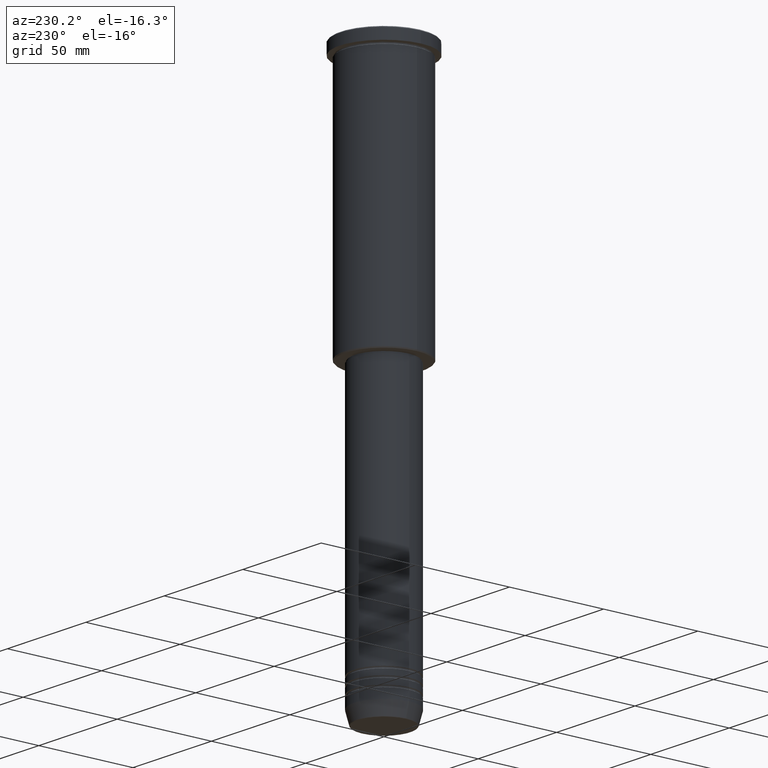
[diagram: clean part render]
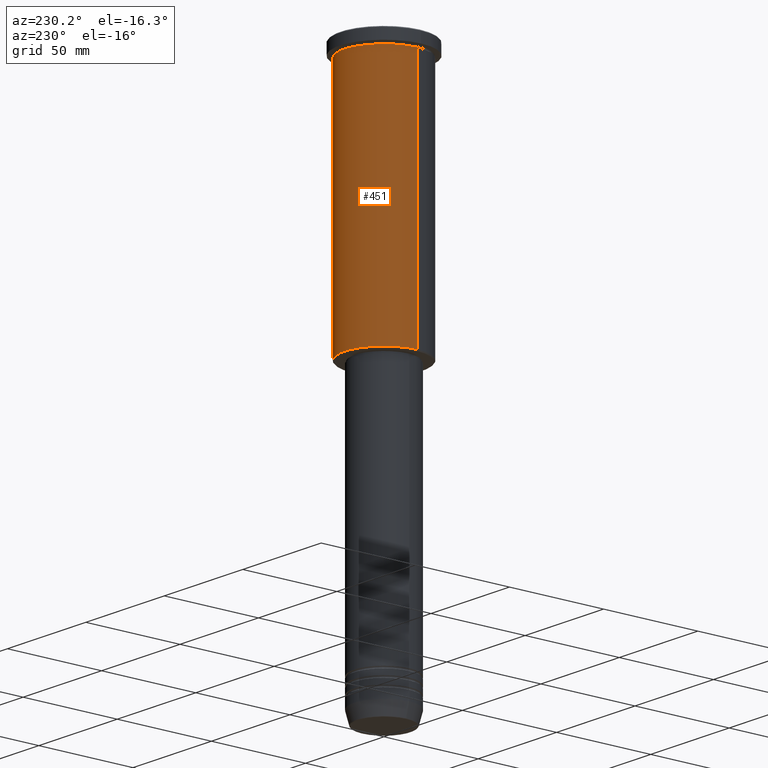
[diagram: same view with one face highlighted and labeled with its STEP entity id]
A machine part, auxiliary view. The second image highlights one B-rep face of the part: STEP entity #451.
In plain terms, the highlighted cylindrical surface (partial cylindrical patch) has radius 21 mm, axis along (-0, -0, 1).
Its self-contained STEP definition (entity closure, byte-faithful):
#73 = CARTESIAN_POINT ( 'NONE',  ( 0.000000000000000000, 0.000000000000000000, 0.000000000000000000 ) ) ;
#114 = VECTOR ( 'NONE', #858, 1000.000000000000000 ) ;
#138 = VECTOR ( 'NONE', #721, 1000.000000000000000 ) ;
#140 = CARTESIAN_POINT ( 'NONE',  ( -21.00000000000000000, 2.571758278209441661E-15, 0.000000000000000000 ) ) ;
#144 = DIRECTION ( 'NONE',  ( -0.000000000000000000, -0.000000000000000000, 1.000000000000000000 ) ) ;
#187 = CARTESIAN_POINT ( 'NONE',  ( 0.000000000000000000, 0.000000000000000000, -135.5000000000000568 ) ) ;
#205 = CIRCLE ( 'NONE', #457, 21.00000000000000000 ) ;
#224 = ORIENTED_EDGE ( 'NONE', *, *, #681, .T. ) ;
#242 = VERTEX_POINT ( 'NONE', #510 ) ;
#260 = DIRECTION ( 'NONE',  ( 1.000000000000000000, 0.000000000000000000, 0.000000000000000000 ) ) ;
#306 = EDGE_LOOP ( 'NONE', ( #1143, #224, #495, #977 ) ) ;
#368 = EDGE_CURVE ( 'NONE', #242, #943, #626, .T. ) ;
#425 = LINE ( 'NONE', #140, #114 ) ;
#440 = CIRCLE ( 'NONE', #479, 21.00000000000000000 ) ;
#449 = CARTESIAN_POINT ( 'NONE',  ( 21.00000000000000000, 0.000000000000000000, 0.000000000000000000 ) ) ;
#451 = ADVANCED_FACE ( 'NONE', ( #1178 ), #979, .T. ) ;
#457 = AXIS2_PLACEMENT_3D ( 'NONE', #591, #144, #1152 ) ;
#467 = CARTESIAN_POINT ( 'NONE',  ( -21.00000000000000000, 2.571758278209441661E-15, -135.5000000000000568 ) ) ;
#479 = AXIS2_PLACEMENT_3D ( 'NONE', #187, #574, #730 ) ;
#495 = ORIENTED_EDGE ( 'NONE', *, *, #754, .F. ) ;
#510 = CARTESIAN_POINT ( 'NONE',  ( 21.00000000000000000, 0.000000000000000000, -135.5000000000000568 ) ) ;
#514 = VERTEX_POINT ( 'NONE', #1105 ) ;
#522 = AXIS2_PLACEMENT_3D ( 'NONE', #73, #886, #260 ) ;
#574 = DIRECTION ( 'NONE',  ( -0.000000000000000000, -0.000000000000000000, 1.000000000000000000 ) ) ;
#591 = CARTESIAN_POINT ( 'NONE',  ( 0.000000000000000000, 0.000000000000000000, -6.999999999999993783 ) ) ;
#626 = LINE ( 'NONE', #449, #138 ) ;
#681 = EDGE_CURVE ( 'NONE', #909, #514, #425, .T. ) ;
#721 = DIRECTION ( 'NONE',  ( -0.000000000000000000, -0.000000000000000000, 1.000000000000000000 ) ) ;
#730 = DIRECTION ( 'NONE',  ( -1.000000000000000000, 0.000000000000000000, 0.000000000000000000 ) ) ;
#734 = CARTESIAN_POINT ( 'NONE',  ( 21.00000000000000000, 0.000000000000000000, -6.999999999999993783 ) ) ;
#754 = EDGE_CURVE ( 'NONE', #943, #514, #205, .T. ) ;
#858 = DIRECTION ( 'NONE',  ( -0.000000000000000000, -0.000000000000000000, 1.000000000000000000 ) ) ;
#886 = DIRECTION ( 'NONE',  ( -0.000000000000000000, -0.000000000000000000, 1.000000000000000000 ) ) ;
#904 = EDGE_CURVE ( 'NONE', #242, #909, #440, .T. ) ;
#909 = VERTEX_POINT ( 'NONE', #467 ) ;
#943 = VERTEX_POINT ( 'NONE', #734 ) ;
#977 = ORIENTED_EDGE ( 'NONE', *, *, #368, .F. ) ;
#979 = CYLINDRICAL_SURFACE ( 'NONE', #522, 21.00000000000000000 ) ;
#1105 = CARTESIAN_POINT ( 'NONE',  ( -21.00000000000000000, 2.571758278209441661E-15, -6.999999999999993783 ) ) ;
#1143 = ORIENTED_EDGE ( 'NONE', *, *, #904, .T. ) ;
#1152 = DIRECTION ( 'NONE',  ( 1.000000000000000000, 0.000000000000000000, 0.000000000000000000 ) ) ;
#1178 = FACE_OUTER_BOUND ( 'NONE', #306, .T. ) ;